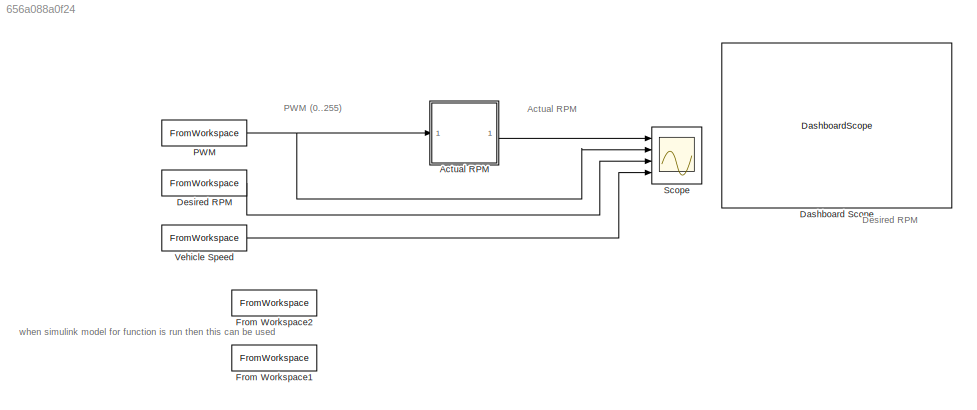
MODEL slx_656a088a0f24
KIND model
CONFIG AbsTol = auto
CONFIG EnableMultiTasking = off
CONFIG FixedStep = auto
CONFIG MaxStep = auto
CONFIG MinStep = auto
CONFIG RelTol = 1e-3
CONFIG SampleTimeConstraint = Unconstrained
CONFIG Solver = VariableStepAuto
CONFIG SolverName = VariableStepAuto
CONFIG StartTime = 0.0
CONFIG StopTime = 400
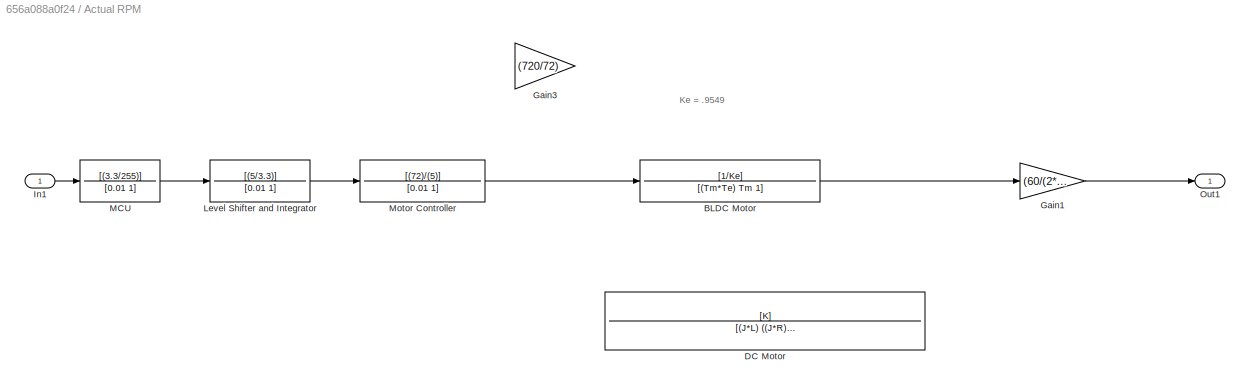
BLOCK [SubSystem] Actual RPM
  Ports = [1, 1]
  RequestExecContextInheritance = off
BLOCK [TransferFcn] Actual RPM/BLDC Motor
  Denominator = [(Tm*Te) Tm 1]
  Numerator = [1/Ke]
BLOCK [TransferFcn] Actual RPM/DC Motor
  Commented = on
  Denominator = [(J*L) ((J*R)+(b*L)) ((b*R)+(K)^2) ]
  Numerator = [K]
BLOCK [Gain] Actual RPM/Gain1
  Gain = (60/(2*pi))
  OutDataTypeStr = Inherit: Inherit via internal rule
  ParamDataTypeStr = Inherit: Inherit via internal rule
  SaturateOnIntegerOverflow = off
BLOCK [Gain] Actual RPM/Gain3
  Commented = on
  Gain = (720/72)
  OutDataTypeStr = Inherit: Inherit via internal rule
  ParamDataTypeStr = Inherit: Inherit via internal rule
  SaturateOnIntegerOverflow = off
BLOCK [Inport] Actual RPM/In1
  IconDisplay = Port number
BLOCK [TransferFcn] Actual RPM/Level Shifter and Integrator
  Denominator = [0.01 1]
  Numerator = [(5/3.3)]
BLOCK [TransferFcn] Actual RPM/MCU
  Denominator = [0.01 1]
  Numerator = [(3.3/255)]
BLOCK [TransferFcn] Actual RPM/Motor Controller
  Denominator = [0.01 1]
  Numerator = [(72)/(5)]
BLOCK [Outport] Actual RPM/Out1
  IconDisplay = Port number
BLOCK [DashboardScope] Dashboard Scope
BLOCK [FromWorkspace] Desired RPM
  SampleTime = 0
  VariableName = [t,N_3]
  ZeroCross = on
BLOCK [FromWorkspace] From Workspace1
  Commented = on
  SampleTime = 0
  VariableName = [out.N_3.data(1:length(t))', out.N_3.data((length(t)+1):(2*length(t)))']
  ZeroCross = on
BLOCK [FromWorkspace] From Workspace2
  Commented = on
  SampleTime = 0
  VariableName = [out.l_pwm.data(1:length(t))', out.l_pwm.data((length(t)+1):(2*length(t)))']
  ZeroCross = on
BLOCK [FromWorkspace] PWM
  SampleTime = 0
  VariableName = [t,l_pwm]
  ZeroCross = on
BLOCK [Scope] Scope
  Floating = off
  NumInputPorts = 4
  Ports = [4]
  ScopeSpecificationString = Simulink.scopes.TimeScopeBlockCfg('CurrentConfiguration', extmgr.ConfigurationSet(extmgr.Configuration('Core','General UI',true),extmgr.Configuration('Core','Source UI',true),extmgr.Configuration('Sources','WiredSimulink',true,'DataLoggingLimitDataPoints',true,'DataLoggingMaxPoints','500000000'),extmgr.Configuration('Visuals','Time Domain',true,'SerializedDisplays',{struct('MinYLimReal','-82.316',...<+1648ch>
BLOCK [FromWorkspace] Vehicle Speed 
  SampleTime = 0
  VariableName = [t, v]
  ZeroCross = on
ANNOTATION (root): Actual RPM
ANNOTATION (root): Desired RPM
ANNOTATION (root): PWM (0..255)
ANNOTATION (root): when simulink model for function is run then this can be used
ANNOTATION Actual RPM: Ke = .9549
LINE Actual RPM/BLDC Motor:1 -> Actual RPM/Gain1:1
LINE Actual RPM/Gain1:1 -> Actual RPM/Out1:1
LINE Actual RPM/In1:1 -> Actual RPM/MCU:1
LINE Actual RPM/Level Shifter and Integrator:1 -> Actual RPM/Motor Controller:1
LINE Actual RPM/MCU:1 -> Actual RPM/Level Shifter and Integrator:1
LINE Actual RPM/Motor Controller:1 -> Actual RPM/BLDC Motor:1
LINE Actual RPM:1 -> Scope:1
LINE Desired RPM:1 -> Scope:3
NET PWM:1 -> Actual RPM:1, Scope:2
LINE Vehicle Speed :1 -> Scope:4
note: NET lines group one-source signal fan-out (src -> all destinations, sorted); 1:1 wires keep LINE
